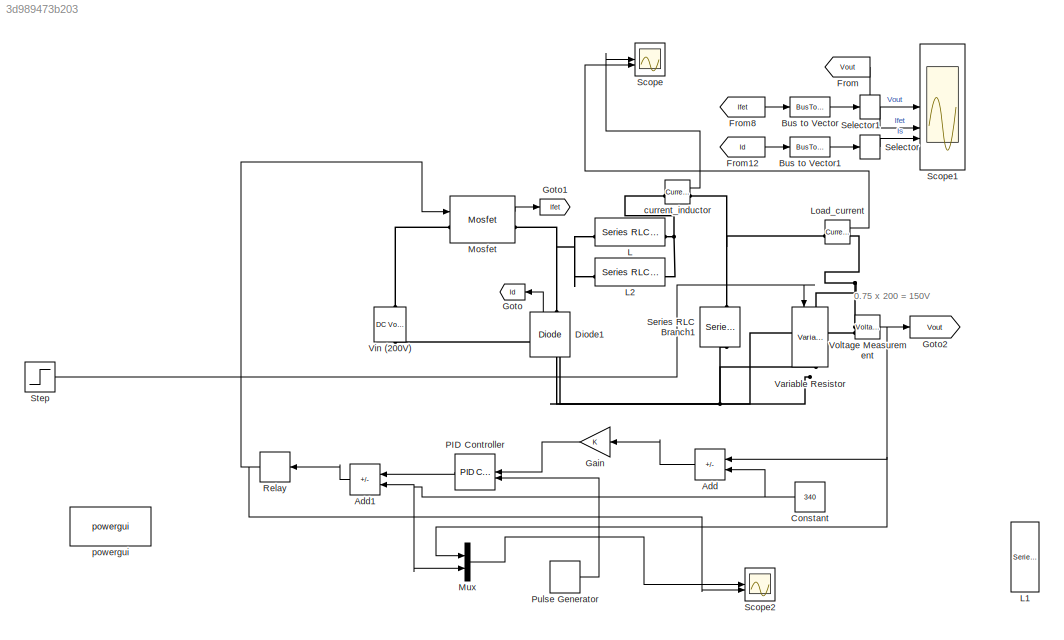
MODEL slx_3d989473b203
KIND model
CONFIG AbsTol = auto
CONFIG EnableMultiTasking = on
CONFIG FixedStep = auto
CONFIG MaxStep = 1e-4
CONFIG MinStep = auto
CONFIG RelTol = 1e-4
CONFIG SampleTimeConstraint = Unconstrained
CONFIG SolverName = VariableStepAuto
CONFIG StartTime = 0.0
CONFIG StopTime = 0.008
BLOCK [Sum] Add
  IconShape = rectangular
  Inputs = -+
BLOCK [Sum] Add1
  IconShape = rectangular
  Inputs = +-
BLOCK [BusToVector] Bus to Vector
BLOCK [BusToVector] Bus to Vector1
BLOCK [Constant] Constant
  Value = 340
BLOCK [Reference] Diode1  REF=spsDiodeLib/Diode
  LibrarySourceBlock = sps_lib/Power Electronics/Diode
  NameLocation = right
  SourceBlock = spsDiodeLib/Diode
  SourceType = Diode
BLOCK [From] From
  GotoTag = Vout
BLOCK [From] From12
  GotoTag = Id
BLOCK [From] From8
  GotoTag = Ifet
BLOCK [Gain] Gain
BLOCK [Goto] Goto
  GotoTag = Id
BLOCK [Goto] Goto1
  GotoTag = Ifet
BLOCK [Goto] Goto2
  GotoTag = Vout
BLOCK [Reference] L  REF=spsSeriesRLCBranchLib/Series RLC Branch
  LibrarySourceBlock = sps_lib/Passives/Series RLC Branch
  SourceBlock = spsSeriesRLCBranchLib/Series RLC Branch
  SourceType = Series RLC Branch
BLOCK [Reference] L1  REF=spsSeriesRLCBranchLib/Series RLC Branch
  LibrarySourceBlock = sps_lib/Passives/Series RLC Branch
  NameLocation = left
  SourceBlock = spsSeriesRLCBranchLib/Series RLC Branch
  SourceType = Series RLC Branch
BLOCK [Reference] L2  REF=spsSeriesRLCBranchLib/Series RLC Branch
  LibrarySourceBlock = sps_lib/Passives/Series RLC Branch
  SourceBlock = spsSeriesRLCBranchLib/Series RLC Branch
  SourceType = Series RLC Branch
BLOCK [Reference] Load_current  REF=spsCurrentMeasurementLib/Current Measurement
  LibrarySourceBlock = sps_lib/Sensors and Measurements/Current Measurement
  SourceBlock = spsCurrentMeasurementLib/Current Measurement
  SourceType = Current Measurement
  UserDataPersistent = on
BLOCK [Reference] Mosfet  REF=spsMosfetLib/Mosfet
  LibrarySourceBlock = sps_lib/Power Electronics/Mosfet
  SourceBlock = spsMosfetLib/Mosfet
  SourceType = Mosfet
BLOCK [Mux] Mux
  DisplayOption = bar
  Inputs = 2
BLOCK [Reference] PID Controller  REF=slpidlib/PID Controller
  LibrarySourceBlock = simulink/Continuous/PID Controller
  SourceBlock = slpidlib/PID Controller
  SourceType = PID 1dof
BLOCK [DiscretePulseGenerator] Pulse Generator
  Period = 1/6000
  PulseType = Time based
  PulseWidth = 50
BLOCK [Relay] Relay
BLOCK [Scope] Scope
  Floating = off
  NumInputPorts = 2
  ScopeSpecificationString = Simulink.scopes.TimeScopeBlockCfg('CurrentConfiguration', extmgr.ConfigurationSet(extmgr.Configuration('Core','General UI',true),extmgr.Configuration('Core','Source UI',true),extmgr.Configuration('Sources','WiredSimulink',true,'DataLoggingVariableName','ScopeData1'),extmgr.Configuration('Visuals','Time Domain',true,'SerializedDisplays',{struct('MinYLimReal','-739.19601','MaxYLimReal','1573.23068',...<+1560ch>
BLOCK [Scope] Scope1
  Floating = off
  NumInputPorts = 3
  ScopeSpecificationString = Simulink.scopes.TimeScopeBlockCfg('CurrentConfiguration', extmgr.ConfigurationSet(extmgr.Configuration('Core','General UI',true),extmgr.Configuration('Core','Source UI',true),extmgr.Configuration('Sources','WiredSimulink',true),extmgr.Configuration('Visuals','Time Domain',true,'SerializedDisplays',{struct('MinYLimReal','-77.86115','MaxYLimReal','700.75038','YLabelReal','','MinYLimMag','0.00000','M...<+2816ch>
BLOCK [Scope] Scope2
  Floating = off
  NumInputPorts = 2
  ScopeSpecificationString = Simulink.scopes.TimeScopeBlockCfg('CurrentConfiguration', extmgr.ConfigurationSet(extmgr.Configuration('Core','General UI',true),extmgr.Configuration('Core','Source UI',true),extmgr.Configuration('Sources','WiredSimulink',true,'DataLoggingVariableName','ScopeData1'),extmgr.Configuration('Visuals','Time Domain',true,'SerializedDisplays',{struct('MinYLimReal','-46.68329','MaxYLimReal','420.14961','Y...<+2113ch>
BLOCK [Selector] Selector
  IndexOptions = Index vector (dialog)
  Indices = 1
  InputPortWidth = 2
  OutputSizes = 1
BLOCK [Selector] Selector1
  IndexOptions = Index vector (dialog)
  Indices = 1
  InputPortWidth = 2
  OutputSizes = 1
BLOCK [Reference] Series RLC Branch1  REF=spsSeriesRLCBranchLib/Series RLC Branch
  LibrarySourceBlock = sps_lib/Passives/Series RLC Branch
  NameLocation = left
  SourceBlock = spsSeriesRLCBranchLib/Series RLC Branch
  SourceType = Series RLC Branch
BLOCK [Step] Step
  After = 4
  Before = 2.064
  SampleTime = 0
  Time = 0.0035
BLOCK [Reference] Variable Resistor  REF=spsVariableResistorLib/Variable Resistor
  LibrarySourceBlock = sps_lib/Passives/Variable Resistor
  NameLocation = left
  SourceBlock = spsVariableResistorLib/Variable Resistor
  SourceType = Variable Resistor
BLOCK [Reference] Vin (200V)  REF=spsDCVoltageSourceLib/DC Voltage Source
  LibrarySourceBlock = sps_lib/Sources/DC Voltage Source
  NameLocation = left
  SourceBlock = spsDCVoltageSourceLib/DC Voltage Source
  SourceType = DC Voltage Source
BLOCK [Reference] Voltage Measurement  REF=spsVoltageMeasurementLib/Voltage Measurement
  LibrarySourceBlock = sps_lib/Sensors and Measurements/Voltage Measurement
  SourceBlock = spsVoltageMeasurementLib/Voltage Measurement
  SourceType = Voltage Measurement
  UserDataPersistent = on
BLOCK [Reference] current_inductor  REF=spsCurrentMeasurementLib/Current Measurement
  LibrarySourceBlock = sps_lib/Sensors and Measurements/Current Measurement
  SourceBlock = spsCurrentMeasurementLib/Current Measurement
  SourceType = Current Measurement
  UserDataPersistent = on
BLOCK [Reference] powergui  REF=sps_lib/powergui
  LibrarySourceBlock = sps_lib/powergui
  Priority = 1
  SourceBlock = sps_lib/powergui
  SourceType = PSB option menu block
ANNOTATION (root): 0.75 x 200 = 150V
LINE Add1:1 -> Relay:1
LINE Add:1 -> Gain:1
LINE Bus to Vector1:1 -> Selector:1
LINE Bus to Vector:1 -> Selector1:1
NET Constant:1 -> Add1:2, Add:2, Mux:2
LINE Diode1:1 -> Goto:1
LINE From12:1 -> Bus to Vector1:1
LINE From8:1 -> Bus to Vector:1
LINE From:1 -> Scope1:1
LINE Gain:1 -> PID Controller:1
LINE Load_current:1 -> Scope:2
LINE Mosfet:1 -> Goto1:1
LINE Mux:1 -> Scope2:1
LINE PID Controller:1 -> Add1:1
LINE Pulse Generator:1 -> PID Controller:2
NET Relay:1 -> Mosfet:1, Scope2:2
LINE Selector1:1 -> Scope1:2
LINE Selector:1 -> Scope1:3
LINE Step:1 -> Variable Resistor:1
NET Voltage Measurement:1 -> Add:1, Goto2:1, Mux:1
LINE current_inductor:1 -> Scope:1
PNET net1: Diode1:LConn1 -- Series RLC Branch1:RConn1 -- Variable Resistor:RConn1 -- Vin (200V):LConn1 -- Voltage Measurement:LConn2
PNET net2: Diode1:RConn1 -- L2:LConn1 -- L:LConn1 -- Mosfet:RConn1
PNET net3: L2:RConn1 -- L:RConn1 -- current_inductor:LConn1
PNET net4: Load_current:LConn1 -- Series RLC Branch1:LConn1 -- current_inductor:RConn1
PNET net5: Load_current:RConn1 -- Variable Resistor:LConn1 -- Voltage Measurement:LConn1
PLINE Mosfet:LConn1 -- Vin (200V):RConn1
note: NET lines group one-source signal fan-out (src -> all destinations, sorted); 1:1 wires keep LINE; PNET lines group multi-terminal physical nets as a canonical sorted terminal list (undirected conserving connections); 2-terminal nets keep the pairwise PLINE form
